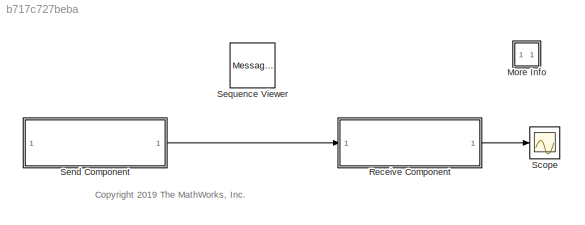
MODEL slx_b717c727beba
KIND model
CONFIG AbsTol = auto
CONFIG EnableMultiTasking = off
CONFIG FixedStep = 0.1
CONFIG MaxStep = auto
CONFIG MinStep = auto
CONFIG RelTol = 1e-3
CONFIG SampleTimeConstraint = Unconstrained
CONFIG SolverName = FixedStepAuto
CONFIG StartTime = 0.0
CONFIG StopTime = 10.0
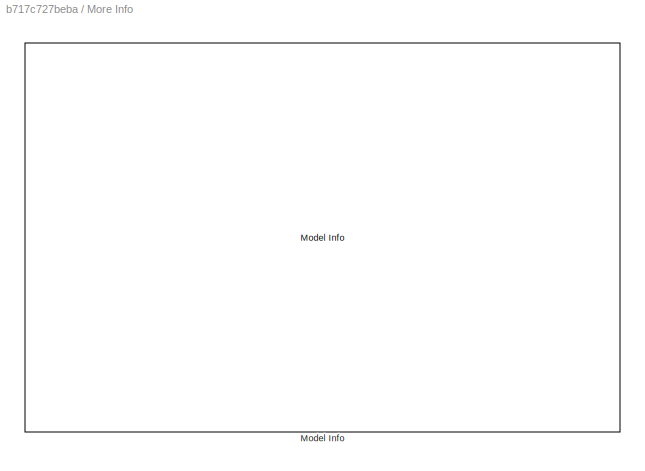
BLOCK [SubSystem] More Info
  OpenFcn = showExample('simulink/MessageBasedCommunicationBetweenSoftwareComponentsExample')
BLOCK [Reference] More Info/Model Info  REF=simulink/Model-Wide
Utilities/Model Info
  SourceBlock = simulink/Model-Wide\nUtilities/Model Info
  SourceType = CMBlock
BLOCK [ModelReference] Receive Component
  InputPortMessageModes = m
  ModelNameDialog = mReceive
  ModelReferenceVersion = 1.37
BLOCK [Scope] Scope
  Floating = off
  NumInputPorts = 1
  ScopeSpecificationString = Simulink.scopes.TimeScopeBlockCfg('CurrentConfiguration', extmgr.ConfigurationSet(extmgr.Configuration('Core','General UI',true),extmgr.Configuration('Core','Source UI',true),extmgr.Configuration('Sources','WiredSimulink',true),extmgr.Configuration('Visuals','Time Domain',true,'SerializedDisplays',{struct('MinYLimReal','-1.24986','MaxYLimReal','1.24951','YLabelReal','','MinYLimMag','0.00000','MaxY...<+1337ch>
BLOCK [ModelReference] Send Component
  ModelNameDialog = mSend
  ModelReferenceVersion = 1.23
  OutputPortMessageModes = m
BLOCK [MessageViewer] Sequence Viewer
ANNOTATION (root): <copyright redacted>
LINE Receive Component:1 -> Scope:1
LINE Send Component:1 -> Receive Component:1
